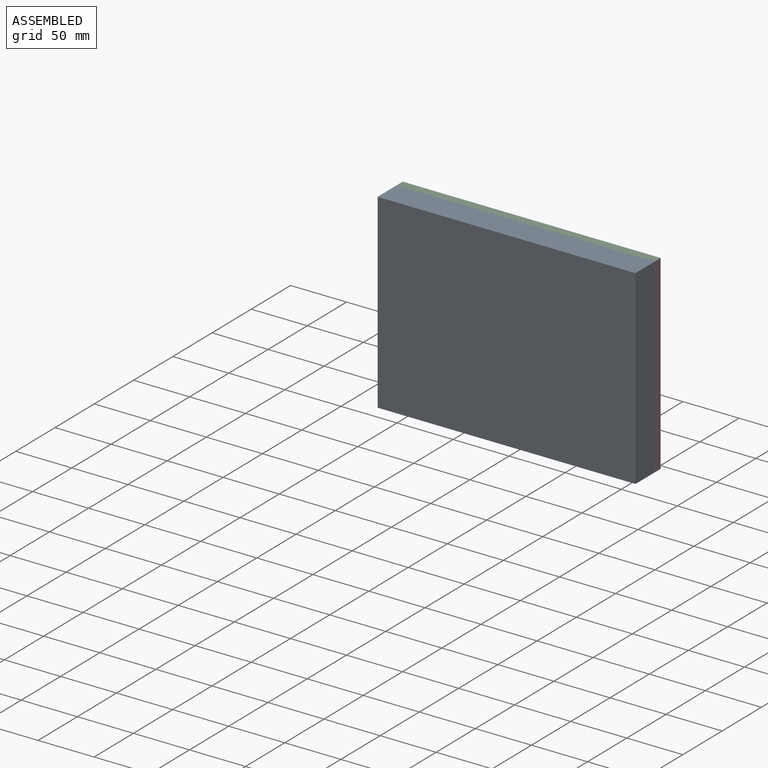
[diagram: assembled view]
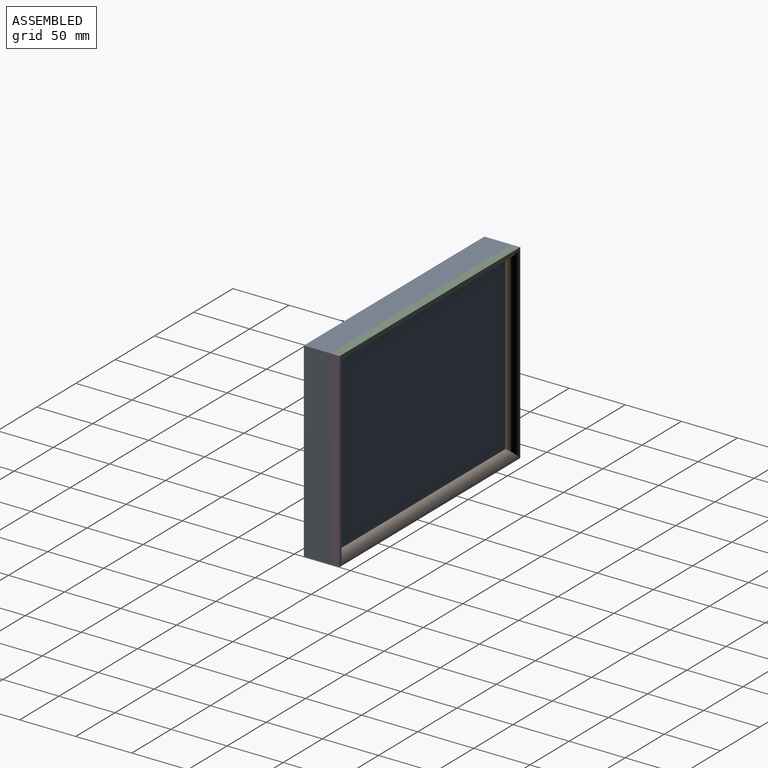
[diagram: assembled view, second angle]
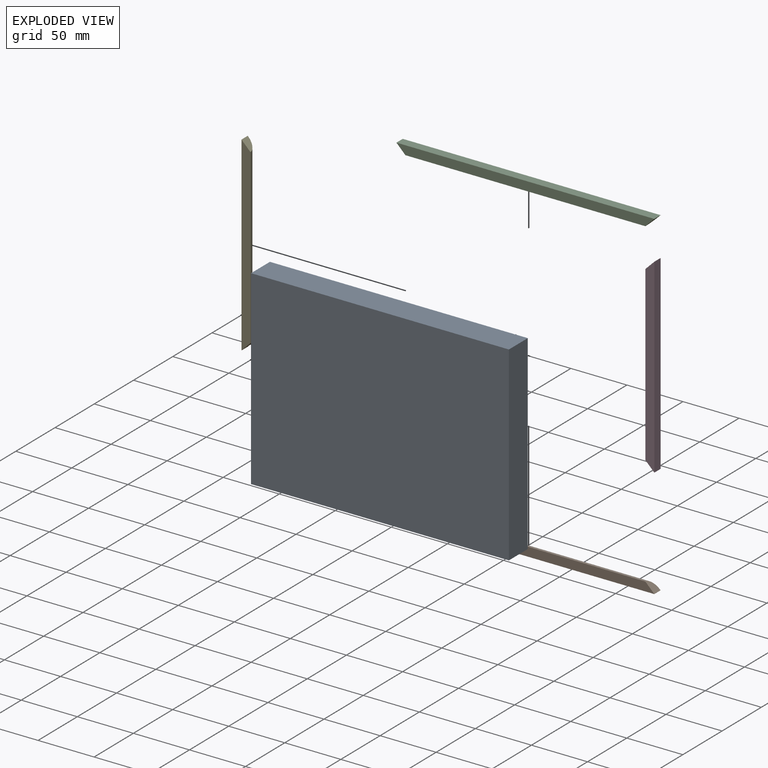
[diagram: exploded view]
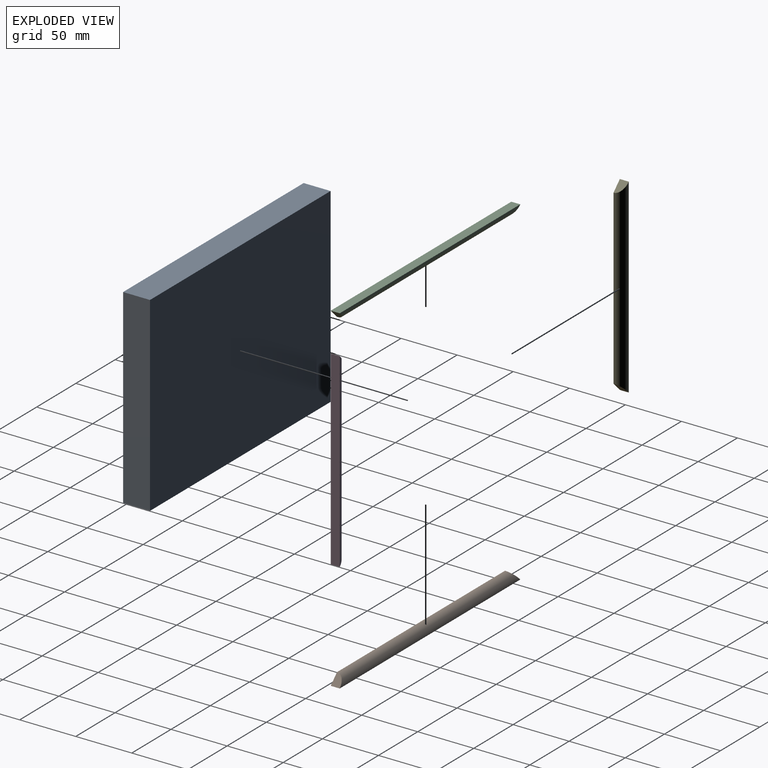
[diagram: exploded view, second angle]
FCSTD DOCUMENT  (FreeCAD 1.1R38894 (Git))
Label: F4.1
License: All rights reserved
LicenseURL: https://en.wikipedia.org/wiki/All_rights_reserved
objects: App::Link×5, App::FeaturePython×5, Sketcher::SketchObject×3, PartDesign::Pad×3, PartDesign::Body×3, PartDesign::Chamfer×2, PartDesign::Fillet×2, App::VarSet×1, App::DocumentObjectGroup×1, Assembly::JointGroup×1, Assembly::AssemblyObject×1
note: 30 computed .brp shape members not serialized (recipe doc carries the construction recipe); baked Part::Feature solids carry a one-line shape summary decoded from their .brp

FEATURE [Sketcher::SketchObject] Sketch
  ArcFitTolerance = 0
  AttachmentSupport = -> [XZ_Plane]
  FullyConstrained = true
  MakeInternals = false
  MapMode = 5
  Placement = pos=(0,0,0) rot=(1,0,0;1.5708rad)
  expr: Constraints[10] = <<Parameters>>.GlassLength
  expr: Constraints[11] = <<Parameters>>.GlassWidth
  sketch-geometry (5):
    g0: LineSegment StartX=-115 StartY=85 StartZ=0 EndX=-115 EndY=-85 EndZ=0
    g1: LineSegment StartX=-115 StartY=-85 StartZ=0 EndX=115 EndY=-85 EndZ=0
    g2: LineSegment StartX=115 StartY=-85 StartZ=0 EndX=115 EndY=85 EndZ=0
    g3: LineSegment StartX=115 StartY=85 StartZ=0 EndX=-115 EndY=85 EndZ=0
    g4: GeomPoint [constr] X=0 Y=0 Z=0
  constraints (12):
    c: Coincident(g0,g1)
    c: Coincident(g1,g2)
    c: Coincident(g2,g3)
    c: Coincident(g3,g0)
    c: Vertical(g0)
    c: Vertical(g2)
    c: Horizontal(g1)
    c: Horizontal(g3)
    c: Symmetric(g2,g0,g4)
    c: Coincident(g4,g-1)
    c: DistanceX(g3,g3) = 230
    c: DistanceY(g2,g2) = 170
FEATURE [Sketcher::SketchObject] Sketch001
  ArcFitTolerance = 0
  AttachmentSupport = -> [XZ_Plane001]
  FullyConstrained = true
  MakeInternals = false
  MapMode = 5
  Placement = pos=(0,0,0) rot=(1,0,0;1.5708rad)
  expr: Constraints[10] = <<Parameters>>.GlazingBeadHalfLength
  expr: Constraints[11] = <<Parameters>>.GlazingBeadHalfWidth
  sketch-geometry (5):
    g0: LineSegment StartX=-115 StartY=-4 StartZ=0 EndX=115 EndY=-4 EndZ=0
    g1: LineSegment StartX=115 StartY=-4 StartZ=0 EndX=115 EndY=4 EndZ=0
    g2: LineSegment StartX=115 StartY=4 StartZ=0 EndX=-115 EndY=4 EndZ=0
    g3: LineSegment StartX=-115 StartY=4 StartZ=0 EndX=-115 EndY=-4 EndZ=0
    g4: GeomPoint [constr] X=0 Y=0 Z=0
  constraints (12):
    c: Coincident(g0,g1)
    c: Coincident(g1,g2)
    c: Coincident(g2,g3)
    c: Coincident(g3,g0)
    c: Horizontal(g0)
    c: Horizontal(g2)
    c: Vertical(g1)
    c: Vertical(g3)
    c: Symmetric(g2,g0,g4)
    c: Coincident(g4,g-1)
    c: DistanceX(g2,g2) = 230
    c: DistanceY(g3,g3) = 8
FEATURE [App::VarSet] VarSet  label="Parameters"
  GlassLength = 230
  GlassThickness = 24
  GlassWidth = 170
  GlazingBeadHalfLength = 230
  GlazingBeadHalfWidth = 8
  GlazingBeadThickness = 8
  GlazingBeadThirdLength = 170
  GlazingBeadThirdWidth = 8
  GlazingBeadWidth = 8
  expr: GlazingBeadHalfLength = GlassLength
  expr: GlazingBeadThirdLength = GlassWidth
FEATURE [PartDesign::Pad] Pad
  Direction = (0,-1,2e-16)
  Length = 24
  Length2 = 10
  Midplane = true
  Placement = pos=(0,0,0) rot=(1,0,0;1.5708rad)
  Profile = -> Sketch
  ReferenceAxis = -> Sketch [N_Axis]
  Refine = true
  Suppressed = false
  Type = 0
  expr: Length = <<Parameters>>.GlassThickness
FEATURE [PartDesign::Body] Body  label="Glass third"
  AllowCompound = false
  Group = -> [Sketch,Pad]
  Length = 230
  Origin = -> Origin
  Thickness = 24
  Tip = -> Pad
  Width = 170
FEATURE [PartDesign::Pad] Pad001  label="Stock"
  Direction = (0,-1,2e-16)
  Length = 8
  Length2 = 10
  Midplane = true
  Placement = pos=(0,0,0) rot=(1,0,0;1.5708rad)
  Profile = -> Sketch001
  ReferenceAxis = -> Sketch001 [N_Axis]
  Refine = true
  Suppressed = false
  Type = 0
  expr: Length = <<Parameters>>.GlazingBeadThickness
FEATURE [PartDesign::Chamfer] Chamfer
  Angle = 45
  Base = -> Pad001 [Edge5,Edge8]
  BaseFeature = -> Pad001
  ChamferType = 0
  FlipDirection = false
  Placement = pos=(0,0,0) rot=(1,0,0;1.5708rad)
  Refine = true
  Size = 7.99
  Size2 = 1
  SupportTransform = false
  Suppressed = false
  UseAllEdges = false
  expr: Size = <<Parameters>>.GlazingBeadWidth - 0.01 mm
FEATURE [PartDesign::Fillet] Fillet
  Base = -> Chamfer [Edge7]
  BaseFeature = -> Chamfer
  Placement = pos=(0,0,0) rot=(1,0,0;1.5708rad)
  Radius = 7.99
  Refine = true
  SupportTransform = false
  Suppressed = false
  UseAllEdges = false
  expr: Radius = <<Parameters>>.GlazingBeadThickness - 0.01 mm
FEATURE [PartDesign::Body] Body001  label="Glazing bead half"
  AllowCompound = false
  Group = -> [Sketch001,Pad001,Chamfer,Fillet]
  Length = 230
  Origin = -> Origin001
  Thickness = 8
  Tip = -> Fillet
  Width = 8
FEATURE [Sketcher::SketchObject] Sketch002
  ArcFitTolerance = 0
  AttachmentSupport = -> [XZ_Plane002]
  FullyConstrained = true
  MakeInternals = false
  MapMode = 5
  Placement = pos=(0,0,0) rot=(1,0,0;1.5708rad)
  expr: Constraints[10] = <<Parameters>>.GlazingBeadThirdLength
  expr: Constraints[11] = <<Parameters>>.GlazingBeadThirdWidth
  sketch-geometry (5):
    g0: LineSegment StartX=-85 StartY=-4 StartZ=0 EndX=85 EndY=-4 EndZ=0
    g1: LineSegment StartX=85 StartY=-4 StartZ=0 EndX=85 EndY=4 EndZ=0
    g2: LineSegment StartX=85 StartY=4 StartZ=0 EndX=-85 EndY=4 EndZ=0
    g3: LineSegment StartX=-85 StartY=4 StartZ=0 EndX=-85 EndY=-4 EndZ=0
    g4: GeomPoint [constr] X=0 Y=0 Z=0
  constraints (12):
    c: Coincident(g0,g1)
    c: Coincident(g1,g2)
    c: Coincident(g2,g3)
    c: Coincident(g3,g0)
    c: Horizontal(g0)
    c: Horizontal(g2)
    c: Vertical(g1)
    c: Vertical(g3)
    c: Symmetric(g2,g0,g4)
    c: Coincident(g4,g-1)
    c: DistanceX(g2,g2) = 170
    c: DistanceY(g3,g3) = 8
FEATURE [PartDesign::Pad] Pad002  label="Stock001"
  Direction = (0,-1,2e-16)
  Length = 8
  Length2 = 10
  Midplane = true
  Placement = pos=(0,0,0) rot=(1,0,0;1.5708rad)
  Profile = -> Sketch002
  ReferenceAxis = -> Sketch002 [N_Axis]
  Refine = true
  Suppressed = false
  Type = 0
  expr: Length = <<Parameters>>.GlazingBeadThickness
FEATURE [PartDesign::Chamfer] Chamfer001
  Angle = 45
  Base = -> Pad002 [Edge5,Edge8]
  BaseFeature = -> Pad002
  ChamferType = 0
  FlipDirection = false
  Placement = pos=(0,0,0) rot=(1,0,0;1.5708rad)
  Refine = true
  Size = 7.99
  Size2 = 1
  SupportTransform = false
  Suppressed = false
  UseAllEdges = false
  expr: Size = <<Parameters>>.GlazingBeadWidth - 0.01 mm
FEATURE [PartDesign::Fillet] Fillet001
  Base = -> Chamfer001 [Edge7]
  BaseFeature = -> Chamfer001
  Placement = pos=(0,0,0) rot=(1,0,0;1.5708rad)
  Radius = 7.99
  Refine = true
  SupportTransform = false
  Suppressed = false
  UseAllEdges = false
  expr: Radius = <<Parameters>>.GlazingBeadThickness - 0.01 mm
FEATURE [PartDesign::Body] Body002  label="Glazing bead third"
  AllowCompound = false
  Group = -> [Sketch002,Pad002,Chamfer001,Fillet001]
  Length = 170
  Origin = -> Origin002
  Thickness = 8
  Tip = -> Fillet001
  Width = 8
FEATURE [App::DocumentObjectGroup] Group  label="Components"
  Group = -> [Body,Body001,Body002]
FEATURE [App::Link] Glass_third  label="Glass third001"
  LinkPlacement = pos=(-35.9039,-54.1996,47.6343) rot=(0,0,1;0rad)
  LinkedObject = -> Body
  Placement = pos=(-35.9039,-54.1996,47.6343) rot=(0,0,1;0rad)
FEATURE [App::FeaturePython] GroundedJoint  # Assembly grounded joint (typed FeaturePython)
  ObjectToGround = -> Glass_third
  Placement = pos=(-35.9039,-54.1996,47.6343) rot=(0,0,1;0rad)
FEATURE [App::Link] Glazing_bead_half  label="Glazing bead half001"
  LinkPlacement = pos=(-35.9039,-38.1996,-33.3757) rot=(0,0,1;0rad)
  LinkedObject = -> Body001
  Placement = pos=(-35.9039,-38.1996,-33.3757) rot=(0,0,1;0rad)
FEATURE [App::Link] Glazing_bead_half001  label="Glazing bead half002"
  LinkPlacement = pos=(-35.9039,-38.1996,128.644) rot=(0,1,0;3.14159rad)
  LinkedObject = -> Body001
  Placement = pos=(-35.9039,-38.1996,128.644) rot=(0,1,0;3.14159rad)
FEATURE [App::Link] Glazing_bead_third  label="Glazing bead third001"
  LinkPlacement = pos=(75.1061,-38.1996,47.6343) rot=(0,1,0;4.71239rad)
  LinkedObject = -> Body002
  Placement = pos=(75.1061,-38.1996,47.6343) rot=(0,1,0;4.71239rad)
FEATURE [App::Link] Glazing_bead_third001  label="Glazing bead third002"
  LinkPlacement = pos=(-146.914,-38.1996,47.6343) rot=(0,1,0;1.5708rad)
  LinkedObject = -> Body002
  Placement = pos=(-146.914,-38.1996,47.6343) rot=(0,1,0;1.5708rad)
FEATURE [App::FeaturePython] Fixed  # Assembly joint (typed FeaturePython)
  Activated = true
  AngleMax = 0
  AngleMin = 0
  Detach1 = false
  Detach2 = false
  Distance = 0
  Distance2 = 0
  EnableAngleMax = false
  EnableAngleMin = false
  EnableLengthMax = false
  EnableLengthMin = false
  JointType = 0 (Fixed)
  LengthMax = 0
  LengthMin = 0
  Placement1 = pos=(115,12,-85) rot=(0,0,1;0rad)
  Placement2 = pos=(115,-4,-3.99) rot=(0,0,1;0rad)
  Reference1 = -> Assembly [Glass_third.Edge9,Glass_third.Vertex5]
  Reference2 = -> Assembly [Glazing_bead_half.Vertex7,Glazing_bead_half.Vertex7]
FEATURE [App::FeaturePython] Fixed001  # Assembly joint (typed FeaturePython)
  Activated = true
  AngleMax = 0
  AngleMin = 0
  Detach1 = false
  Detach2 = false
  Distance = 0
  Distance2 = 0
  EnableAngleMax = false
  EnableAngleMin = false
  EnableLengthMax = false
  EnableLengthMin = false
  JointType = 0 (Fixed)
  LengthMax = 0
  LengthMin = 0
  Offset2 = pos=(0,0,0) rot=(0,0,1;3.14159rad)
  Placement1 = pos=(-115,12,85) rot=(0,0,1;0rad)
  Placement2 = pos=(115,-4,-3.99) rot=(0,0,1;3.14159rad)
  Reference1 = -> Assembly [Glass_third.Vertex1,Glass_third.Vertex1]
  Reference2 = -> Assembly [Glazing_bead_half001.Vertex7,Glazing_bead_half001.Vertex7]
FEATURE [App::FeaturePython] Fixed002  # Assembly joint (typed FeaturePython)
  Activated = true
  AngleMax = 0
  AngleMin = 0
  Detach1 = false
  Detach2 = false
  Distance = 0
  Distance2 = 0
  EnableAngleMax = false
  EnableAngleMin = false
  EnableLengthMax = false
  EnableLengthMin = false
  JointType = 0 (Fixed)
  LengthMax = 0
  LengthMin = 0
  Offset2 = pos=(0,0,0) rot=(0,0,1;1.5708rad)
  Placement1 = pos=(115,12,-85) rot=(0.57735,0.57735,0.57735;4.18879rad)
  Placement2 = pos=(-85,-4,-3.99) rot=(1,0,0;4.71239rad)
  Reference1 = -> Assembly [Glass_third.Face5,Glass_third.Vertex5]
  Reference2 = -> Assembly [Glazing_bead_third.Face9,Glazing_bead_third.Vertex9]
FEATURE [App::FeaturePython] Fixed003  # Assembly joint (typed FeaturePython)
  Activated = true
  AngleMax = 0
  AngleMin = 0
  Detach1 = false
  Detach2 = false
  Distance = 0
  Distance2 = 0
  EnableAngleMax = false
  EnableAngleMin = false
  EnableLengthMax = false
  EnableLengthMin = false
  JointType = 0 (Fixed)
  LengthMax = 0
  LengthMin = 0
  Offset2 = pos=(0,0,0) rot=(0,0,-1;1.5708rad)
  Placement1 = pos=(-115,12,-85) rot=(0.57735,0.57735,0.57735;4.18879rad)
  Placement2 = pos=(85,-4,-3.99) rot=(0,-0.707107,-0.707107;3.14159rad)
  Reference1 = -> Assembly [Glass_third.Face5,Glass_third.Vertex3]
  Reference2 = -> Assembly [Glazing_bead_third001.Face9,Glazing_bead_third001.Vertex7]
FEATURE [Assembly::JointGroup] Joints
  Group = -> [GroundedJoint,Fixed,Fixed001,Fixed002,Fixed003]
FEATURE [Assembly::AssemblyObject] Assembly  label="Glass third assembly"
  Group = -> [Joints,Glass_third,GroundedJoint,Glazing_bead_half,Glazing_bead_half001,Glazing_bead_third,Glazing_bead_third001,Fixed,Fixed001,Fixed002,Fixed003]
  Origin = -> Origin003
  Type = Assembly
